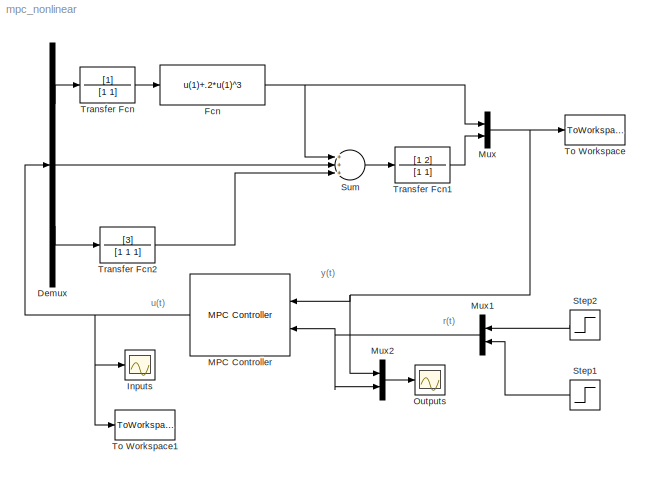
MODEL mpc_nonlinear
KIND model
BLOCK [Demux] Demux
  Outputs = 3
  Ports = [1, 3]
BLOCK [Fcn] Fcn
  Expr = u(1)+.2*u(1)^3
BLOCK [Scope] Inputs
  DataFormat = Structure
  NumInputPorts = 1
  Ports = [1]
  TimeRange = 8
  YMax = 2
  YMin = -1
BLOCK [Reference] MPC Controller  REF=mpclib/MPC Controller  (lib defined in mdl_ae329e0e0455)
  Ports = [2, 1]
  ShowPortLabels = on
  SourceBlock = mpclib/MPC Controller
  SourceType = MPC
  from_project = off
  md_from_ws = off
  md_inport = off
  md_preview = on
  md_signal_name = []
  mpcobj = MPCobj
  n_mv = 0
  project_file = MPCtask.mat
  ref_from_ws = off
  ref_preview = on
  ref_signal_name = []
  x0 = []
BLOCK [Mux] Mux
  DisplayOption = bar
  Inputs = 2
  Ports = [2, 1]
BLOCK [Mux] Mux1
  DisplayOption = bar
  Inputs = 2
  Ports = [2, 1]
BLOCK [Mux] Mux2
  DisplayOption = bar
  Inputs = 2
  Ports = [2, 1]
BLOCK [Scope] Outputs
  DataFormat = Structure
  NumInputPorts = 1
  Ports = [1]
  TimeRange = 8
  YMax = 1.5
  YMin = -0.5
  ZoomMode = yonly
BLOCK [Step] Step1
  SampleTime = 0
  Time = 0
BLOCK [Step] Step2
  SampleTime = 0
  Time = 2
BLOCK [Sum] Sum
  Inputs = +++
  Ports = [3, 1]
BLOCK [ToWorkspace] To Workspace
  MaxDataPoints = Inf
  SampleTime = -1
  SaveFormat = Array
  VariableName = y
BLOCK [ToWorkspace] To Workspace1
  MaxDataPoints = Inf
  SampleTime = -1
  SaveFormat = Array
  VariableName = u
BLOCK [TransferFcn] Transfer Fcn
  Denominator = [1 1]
BLOCK [TransferFcn] Transfer Fcn1
  Numerator = [1 2]
BLOCK [TransferFcn] Transfer Fcn2
  Denominator = [1 1 1]
  Numerator = [3]
ANNOTATION (root): r(t)
ANNOTATION (root): u(t)
ANNOTATION (root): y(t)
LINE Demux:1 -> Transfer Fcn:1
LINE Demux:2 -> Sum:2
LINE Demux:3 -> Transfer Fcn2:1
NET Fcn:1 -> Mux:1, Sum:1
NET MPC Controller:1 -> Demux:1, Inputs:1, To Workspace1:1
NET Mux1:1 -> MPC Controller:2, Mux2:2
LINE Mux2:1 -> Outputs:1
NET Mux:1 -> MPC Controller:1, Mux2:1, To Workspace:1
LINE Step1:1 -> Mux1:2
LINE Step2:1 -> Mux1:1
LINE Sum:1 -> Transfer Fcn1:1
LINE Transfer Fcn1:1 -> Mux:2
LINE Transfer Fcn2:1 -> Sum:3
LINE Transfer Fcn:1 -> Fcn:1
note: NET lines group one-source signal fan-out (src -> all destinations, sorted); 1:1 wires keep LINE
